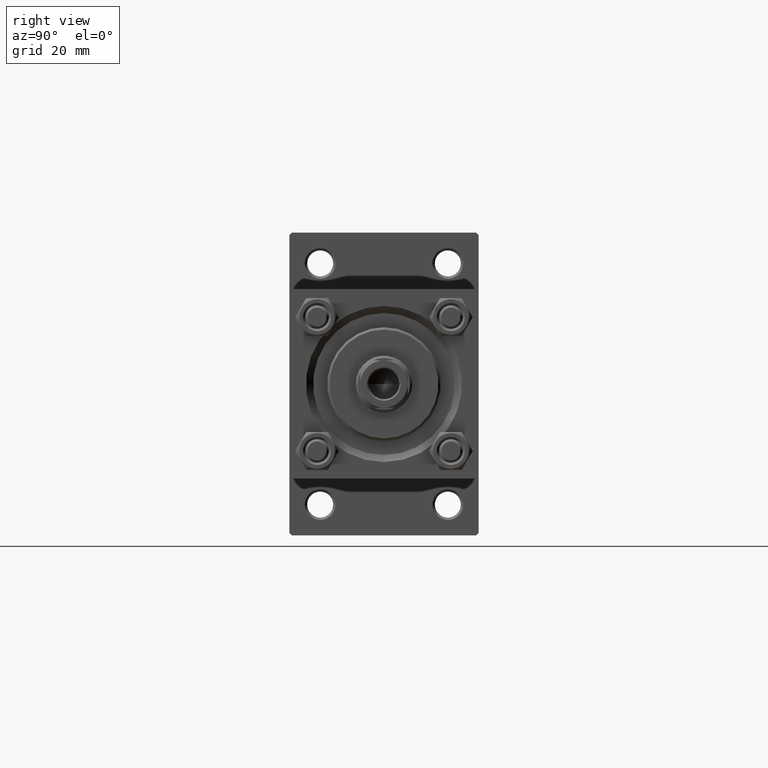
[diagram: clean part render]
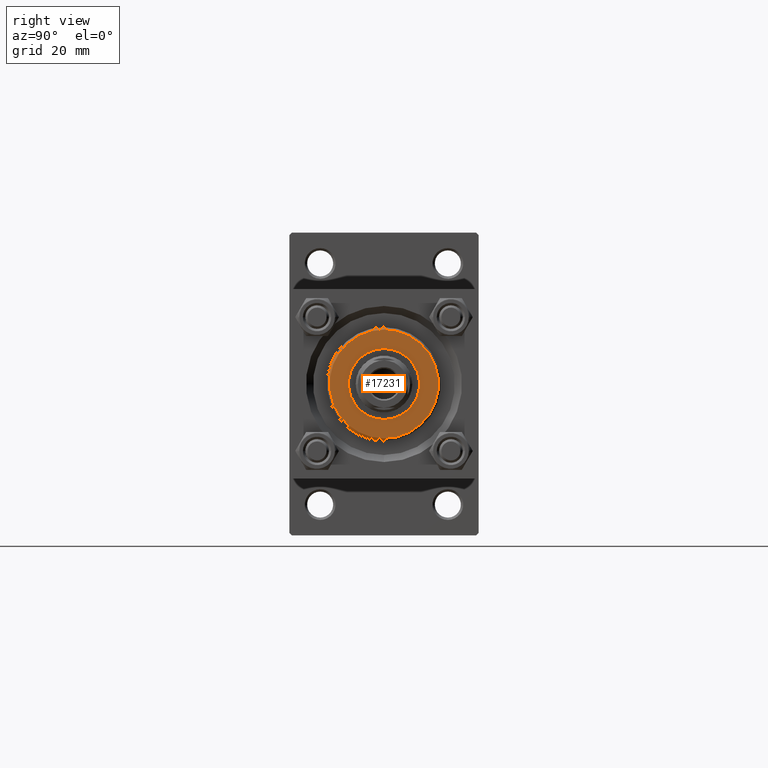
[diagram: same view with one face highlighted and labeled with its STEP entity id]
A machine part, right view. The second image highlights one B-rep face of the part: STEP entity #17231.
In plain terms, the highlighted planar face has unit normal (1, 0, 0).
Its self-contained STEP definition (entity closure, byte-faithful):
#153 = DIRECTION ( 'NONE',  ( 0.000000000000000000, 0.000000000000000000, 1.000000000000000000 ) ) ;
#2915 = DIRECTION ( 'NONE',  ( 0.000000000000000000, 0.000000000000000000, 1.000000000000000000 ) ) ;
#3398 = EDGE_CURVE ( 'NONE', #4569, #36175, #26181, .T. ) ;
#4052 = CIRCLE ( 'NONE', #41162, 11.49999999999999645 ) ;
#4569 = VERTEX_POINT ( 'NONE', #44885 ) ;
#7180 = FACE_OUTER_BOUND ( 'NONE', #21155, .T. ) ;
#8939 = ORIENTED_EDGE ( 'NONE', *, *, #19296, .F. ) ;
#10324 = DIRECTION ( 'NONE',  ( 1.000000000000000000, 0.000000000000000000, 0.000000000000000000 ) ) ;
#13220 = CARTESIAN_POINT ( 'NONE',  ( 0.000000000000000000, 0.000000000000000000, 35.70000000000000284 ) ) ;
#13286 = DIRECTION ( 'NONE',  ( 1.000000000000000000, 0.000000000000000000, 0.000000000000000000 ) ) ;
#17231 = ADVANCED_FACE ( 'NONE', ( #37518, #7180 ), #49601, .T. ) ;
#17372 = CARTESIAN_POINT ( 'NONE',  ( -7.500000000000000888, 9.184850993605149917E-16, 35.70000000000000284 ) ) ;
#17776 = CARTESIAN_POINT ( 'NONE',  ( 11.49999999999999645, 1.438959988998139963E-15, 35.70000000000000284 ) ) ;
#18706 = VERTEX_POINT ( 'NONE', #17776 ) ;
#19041 = DIRECTION ( 'NONE',  ( 1.000000000000000000, 0.000000000000000000, -0.000000000000000000 ) ) ;
#19296 = EDGE_CURVE ( 'NONE', #36175, #4569, #47988, .T. ) ;
#20019 = ORIENTED_EDGE ( 'NONE', *, *, #39316, .T. ) ;
#21155 = EDGE_LOOP ( 'NONE', ( #34445, #20019 ) ) ;
#21385 = EDGE_LOOP ( 'NONE', ( #44020, #8939 ) ) ;
#21461 = DIRECTION ( 'NONE',  ( 0.000000000000000000, 0.000000000000000000, 1.000000000000000000 ) ) ;
#22400 = VERTEX_POINT ( 'NONE', #27521 ) ;
#25430 = CARTESIAN_POINT ( 'NONE',  ( 0.000000000000000000, 0.000000000000000000, 35.70000000000000284 ) ) ;
#26181 = CIRCLE ( 'NONE', #43952, 7.500000000000000888 ) ;
#26617 = DIRECTION ( 'NONE',  ( 0.000000000000000000, 0.000000000000000000, 1.000000000000000000 ) ) ;
#27521 = CARTESIAN_POINT ( 'NONE',  ( -11.49999999999999645, 0.000000000000000000, 35.70000000000000284 ) ) ;
#30226 = AXIS2_PLACEMENT_3D ( 'NONE', #30475, #153, #42317 ) ;
#30475 = CARTESIAN_POINT ( 'NONE',  ( 0.000000000000000000, 0.000000000000000000, 35.70000000000000284 ) ) ;
#32836 = CARTESIAN_POINT ( 'NONE',  ( 0.000000000000000000, 0.000000000000000000, 35.70000000000000284 ) ) ;
#34337 = AXIS2_PLACEMENT_3D ( 'NONE', #32836, #21461, #10324 ) ;
#34445 = ORIENTED_EDGE ( 'NONE', *, *, #46326, .T. ) ;
#36175 = VERTEX_POINT ( 'NONE', #17372 ) ;
#37518 = FACE_BOUND ( 'NONE', #21385, .T. ) ;
#39316 = EDGE_CURVE ( 'NONE', #18706, #22400, #4052, .T. ) ;
#40839 = DIRECTION ( 'NONE',  ( 0.000000000000000000, 0.000000000000000000, 1.000000000000000000 ) ) ;
#41162 = AXIS2_PLACEMENT_3D ( 'NONE', #25430, #40839, #13286 ) ;
#41279 = DIRECTION ( 'NONE',  ( 1.000000000000000000, 0.000000000000000000, 0.000000000000000000 ) ) ;
#42317 = DIRECTION ( 'NONE',  ( 1.000000000000000000, 0.000000000000000000, 0.000000000000000000 ) ) ;
#43952 = AXIS2_PLACEMENT_3D ( 'NONE', #13220, #26617, #41279 ) ;
#44020 = ORIENTED_EDGE ( 'NONE', *, *, #3398, .F. ) ;
#44885 = CARTESIAN_POINT ( 'NONE',  ( 7.500000000000000888, 0.000000000000000000, 35.70000000000000284 ) ) ;
#46114 = AXIS2_PLACEMENT_3D ( 'NONE', #49356, #2915, #19041 ) ;
#46315 = CIRCLE ( 'NONE', #30226, 11.49999999999999645 ) ;
#46326 = EDGE_CURVE ( 'NONE', #22400, #18706, #46315, .T. ) ;
#47988 = CIRCLE ( 'NONE', #34337, 7.500000000000000888 ) ;
#49356 = CARTESIAN_POINT ( 'NONE',  ( 0.000000000000000000, 0.000000000000000000, 35.70000000000000284 ) ) ;
#49601 = PLANE ( 'NONE',  #46114 ) ;